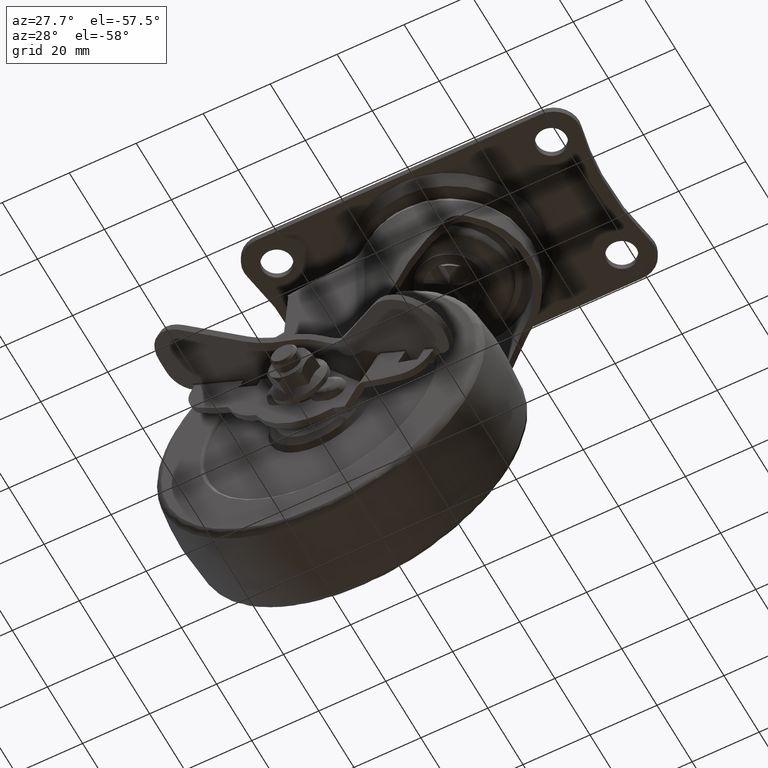
[diagram: clean part render]
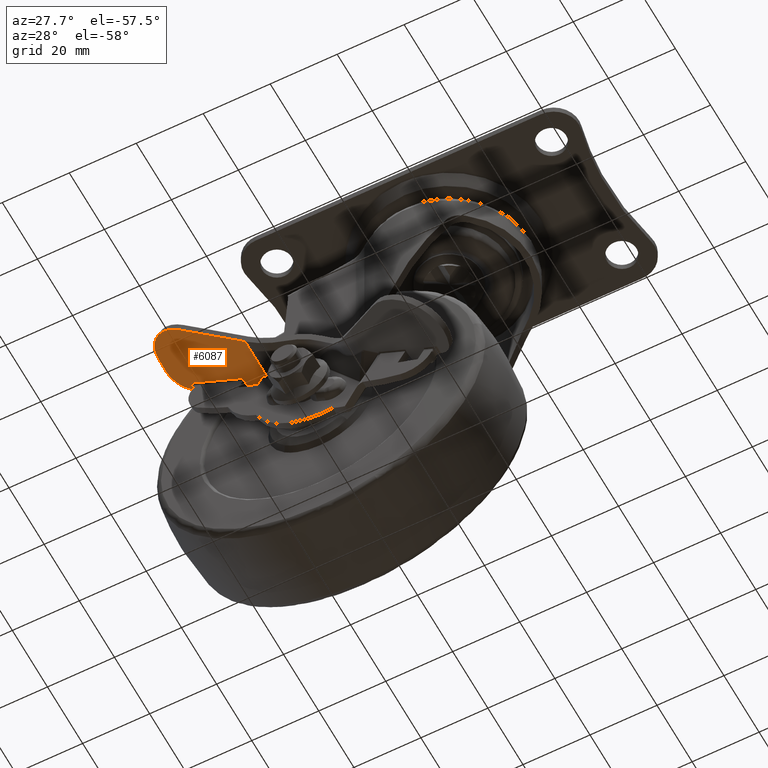
[diagram: same view with one face highlighted and labeled with its STEP entity id]
A machine part, auxiliary view. The second image highlights one B-rep face of the part: STEP entity #6087.
In plain terms, the highlighted face is a freeform B-spline surface patch.
Its self-contained STEP definition (entity closure, byte-faithful):
#1741=CARTESIAN_POINT('',(-50.165897739533008,-20.499999999999300,-62.099994550390598));
#1742=VERTEX_POINT('',#1741);
#1752=CARTESIAN_POINT('',(-52.200001653399987,-20.499999999999751,-62.099993438103603));
#1753=VERTEX_POINT('',#1752);
#1754=CARTESIAN_POINT('',(-52.200001653399987,-20.499999999999751,-62.099993438103603));
#1755=CARTESIAN_POINT('',(-50.165897739533008,-20.499999999999300,-62.099994550390598));
#1756=QUASI_UNIFORM_CURVE('',1,(#1754,#1755),.UNSPECIFIED.,.F.,.U.);
#1757=EDGE_CURVE('',#1753,#1742,#1756,.T.);
#2828=CARTESIAN_POINT('',(-58.399998485337299,-20.499999999999751,-62.099993386363913));
#2829=VERTEX_POINT('',#2828);
#2841=CARTESIAN_POINT('',(-76.476662438475813,-20.499999999999751,-62.099988510075100));
#2842=VERTEX_POINT('',#2841);
#2843=CARTESIAN_POINT('',(-76.476662438475813,-20.499999999999751,-62.099988510075100));
#2844=CARTESIAN_POINT('',(-58.399998485337299,-20.499999999999751,-62.099993386363913));
#2845=QUASI_UNIFORM_CURVE('',1,(#2843,#2844),.UNSPECIFIED.,.F.,.U.);
#2846=EDGE_CURVE('',#2842,#2829,#2845,.T.);
#2891=CARTESIAN_POINT('',(-58.399998485337150,-17.999994114706649,-62.099991856936597));
#2892=VERTEX_POINT('',#2891);
#4231=CARTESIAN_POINT('',(-76.476662438475813,-18.157524697423000,-62.099988510075100));
#4232=VERTEX_POINT('',#4231);
#4233=CARTESIAN_POINT('',(-76.476662438475813,-18.157524697423000,-62.099988510075100));
#4234=CARTESIAN_POINT('',(-76.476662438475813,-20.499999999999751,-62.099988510075100));
#4235=QUASI_UNIFORM_CURVE('',1,(#4233,#4234),.UNSPECIFIED.,.F.,.U.);
#4236=EDGE_CURVE('',#4232,#2842,#4235,.T.);
#4434=CARTESIAN_POINT('',(-52.199998485337012,-17.999994114706769,-62.099991534334798));
#4435=VERTEX_POINT('',#4434);
#4546=CARTESIAN_POINT('',(-52.199998485337012,-17.999994114706769,-62.099991534334798));
#4547=CARTESIAN_POINT('',(-58.399998485337150,-17.999994114706649,-62.099991856936597));
#4548=QUASI_UNIFORM_CURVE('',1,(#4546,#4547),.UNSPECIFIED.,.F.,.U.);
#4549=EDGE_CURVE('',#4435,#2892,#4548,.T.);
#4827=CARTESIAN_POINT('',(-58.399998485337150,-17.999994114706649,-62.099991856936597));
#4828=CARTESIAN_POINT('',(-58.399998485337299,-20.499999999999751,-62.099993386363913));
#4829=QUASI_UNIFORM_CURVE('',1,(#4827,#4828),.UNSPECIFIED.,.F.,.U.);
#4830=EDGE_CURVE('',#2892,#2829,#4829,.T.);
#4895=CARTESIAN_POINT('',(-52.199998485337012,-17.999994114706769,-62.099991534334798));
#4896=CARTESIAN_POINT('',(-52.200001653399987,-20.499999999999751,-62.099993438103603));
#4897=QUASI_UNIFORM_CURVE('',1,(#4895,#4896),.UNSPECIFIED.,.F.,.U.);
#4898=EDGE_CURVE('',#4435,#1753,#4897,.T.);
#4940=CARTESIAN_POINT('',(-82.000000075705103,-25.0,-62.099987388867703));
#4941=VERTEX_POINT('',#4940);
#4942=CARTESIAN_POINT('',(-76.476662438475813,-18.157524697423000,-62.099988510075100));
#4943=CARTESIAN_POINT('',(-77.154392441279100,-18.303544293078950,-62.099988372499688));
#4944=CARTESIAN_POINT('',(-78.512701866694698,-18.816792890640560,-62.099988096770304));
#4945=CARTESIAN_POINT('',(-79.968459836090034,-19.967191390230500,-62.099987801259417));
#4946=CARTESIAN_POINT('',(-80.910188657576228,-21.186617981987180,-62.099987610093578));
#4947=CARTESIAN_POINT('',(-81.516251353325131,-22.327787582223920,-62.099987487066493));
#4948=CARTESIAN_POINT('',(-81.909884550978859,-23.613450962221378,-62.099987407160050));
#4949=CARTESIAN_POINT('',(-82.000047044536927,-24.554330704159600,-62.099987388858693));
#4950=CARTESIAN_POINT('',(-82.000000075705103,-25.0,-62.099987388867703));
#4951=B_SPLINE_CURVE_WITH_KNOTS('',3,(#4942,#4943,#4944,#4945,#4946,#4947,#4948,#4949,#4950),.UNSPECIFIED.,.F.,.U.,(4,1,1,1,1,1,4),(0.000000192452033,2.079855294245089,4.308332338691274,5.496703697044350,6.685235580545847,8.170874636944621,9.507912941103331),.UNSPECIFIED.);
#4952=EDGE_CURVE('',#4232,#4941,#4951,.T.);
#4976=CARTESIAN_POINT('',(-82.000000075705103,-29.100020000000001,-62.099987388867902));
#4977=VERTEX_POINT('',#4976);
#4978=CARTESIAN_POINT('',(-69.012671637690303,-38.643387791478453,-62.099991938119899));
#4979=VERTEX_POINT('',#4978);
#4980=CARTESIAN_POINT('',(-82.000000075705103,-29.100020000000001,-62.099987388867902));
#4981=CARTESIAN_POINT('',(-82.000245036579059,-29.929752044643770,-62.099987447109683));
#4982=CARTESIAN_POINT('',(-81.834962590452051,-31.247385953828289,-62.099987589075653));
#4983=CARTESIAN_POINT('',(-81.137964521011483,-33.336392819216620,-62.099987944045672));
#4984=CARTESIAN_POINT('',(-80.048378274375466,-35.208620528330677,-62.099988401022330));
#4985=CARTESIAN_POINT('',(-78.568098917289191,-36.716565115444332,-62.099988949073563));
#4986=CARTESIAN_POINT('',(-76.926367989481164,-37.868312777198938,-62.099989520304710));
#4987=CARTESIAN_POINT('',(-75.272763811199539,-38.624196266518297,-62.099990067263249));
#4988=CARTESIAN_POINT('',(-73.457260507192402,-39.037146956581253,-62.099990638464917));
#4989=CARTESIAN_POINT('',(-71.405898570648219,-39.166082543029319,-62.099991260143518));
#4990=CARTESIAN_POINT('',(-69.944144709634372,-38.935365371650363,-62.099991680467397));
#4991=CARTESIAN_POINT('',(-69.012671637690303,-38.643387791478453,-62.099991938119899));
#4992=B_SPLINE_CURVE_WITH_KNOTS('',3,(#4980,#4981,#4982,#4983,#4984,#4985,#4986,#4987,#4988,#4989,#4990,#4991),.UNSPECIFIED.,.F.,.U.,(4,1,1,1,1,1,1,1,1,4),(0.000000410976881,2.489141413607523,3.953344603302684,6.588919405352051,8.931708410333178,10.249314147334941,12.592120146999211,14.349180952594891,15.813421730270770,18.741776571127350),.UNSPECIFIED.);
#4993=EDGE_CURVE('',#4977,#4979,#4992,.T.);
#5083=CARTESIAN_POINT('',(-50.165897739532703,-32.743845317481551,-62.099993032944099));
#5084=VERTEX_POINT('',#5083);
#5085=CARTESIAN_POINT('',(-69.012671637690303,-38.643387791478453,-62.099991938119899));
#5086=CARTESIAN_POINT('',(-50.165897739532703,-32.743845317481551,-62.099993032944099));
#5087=QUASI_UNIFORM_CURVE('',1,(#5085,#5086),.UNSPECIFIED.,.F.,.U.);
#5088=EDGE_CURVE('',#4979,#5084,#5087,.T.);
#5948=CARTESIAN_POINT('',(-50.165897739532703,-32.743845317481551,-62.099993032944099));
#5949=CARTESIAN_POINT('',(-50.165897739533008,-20.499999999999300,-62.099994550390598));
#5950=QUASI_UNIFORM_CURVE('',1,(#5948,#5949),.UNSPECIFIED.,.F.,.U.);
#5951=EDGE_CURVE('',#5084,#1742,#5950,.T.);
#6065=CARTESIAN_POINT('',(-83.590113425696245,-40.153599267253561,-62.099987066083621));
#6066=CARTESIAN_POINT('',(-48.575783535684572,-40.153599267253561,-62.099994173799942));
#6067=CARTESIAN_POINT('',(-83.590113425696245,-16.946064755570731,-62.099987066083621));
#6068=CARTESIAN_POINT('',(-48.575783535684572,-16.946064755570731,-62.099994173799942));
#6069=B_SPLINE_SURFACE_WITH_KNOTS('',1,1,((#6065,#6067),(#6066,#6068)),.UNSPECIFIED.,.F.,.F.,.U.,(2,2),(2,2),(0.0,35.014329890012398),(0.0,23.207534511682830),.UNSPECIFIED.);
#6070=ORIENTED_EDGE('',*,*,#4236,.T.);
#6071=ORIENTED_EDGE('',*,*,#2846,.T.);
#6072=ORIENTED_EDGE('',*,*,#4830,.F.);
#6073=ORIENTED_EDGE('',*,*,#4549,.F.);
#6074=ORIENTED_EDGE('',*,*,#4898,.T.);
#6075=ORIENTED_EDGE('',*,*,#1757,.T.);
#6076=ORIENTED_EDGE('',*,*,#5951,.F.);
#6077=ORIENTED_EDGE('',*,*,#5088,.F.);
#6078=ORIENTED_EDGE('',*,*,#4993,.F.);
#6079=CARTESIAN_POINT('',(-82.000000075705103,-29.100020000000001,-62.099987388867902));
#6080=CARTESIAN_POINT('',(-82.000000075705103,-25.0,-62.099987388867703));
#6081=QUASI_UNIFORM_CURVE('',1,(#6079,#6080),.UNSPECIFIED.,.F.,.U.);
#6082=EDGE_CURVE('',#4977,#4941,#6081,.T.);
#6083=ORIENTED_EDGE('',*,*,#6082,.T.);
#6084=ORIENTED_EDGE('',*,*,#4952,.F.);
#6085=EDGE_LOOP('',(#6070,#6071,#6072,#6073,#6074,#6075,#6076,#6077,#6078,#6083,#6084));
#6086=FACE_OUTER_BOUND('',#6085,.T.);
#6087=ADVANCED_FACE('',(#6086),#6069,.F.);